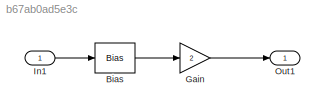
MODEL slx_b67ab0ad5e3c
KIND model
BLOCK [Bias] Bias
  Bias = 2
  SaturateOnIntegerOverflow = off
BLOCK [Gain] Gain
  Gain = 2
  OutDataTypeStr = Inherit: Inherit via internal rule
  ParamDataTypeStr = Inherit: Inherit via internal rule
  SaturateOnIntegerOverflow = off
BLOCK [Inport] In1
  IconDisplay = Port number
BLOCK [Outport] Out1
  IconDisplay = Port number
LINE Bias:1 -> Gain:1
LINE Gain:1 -> Out1:1
LINE In1:1 -> Bias:1
